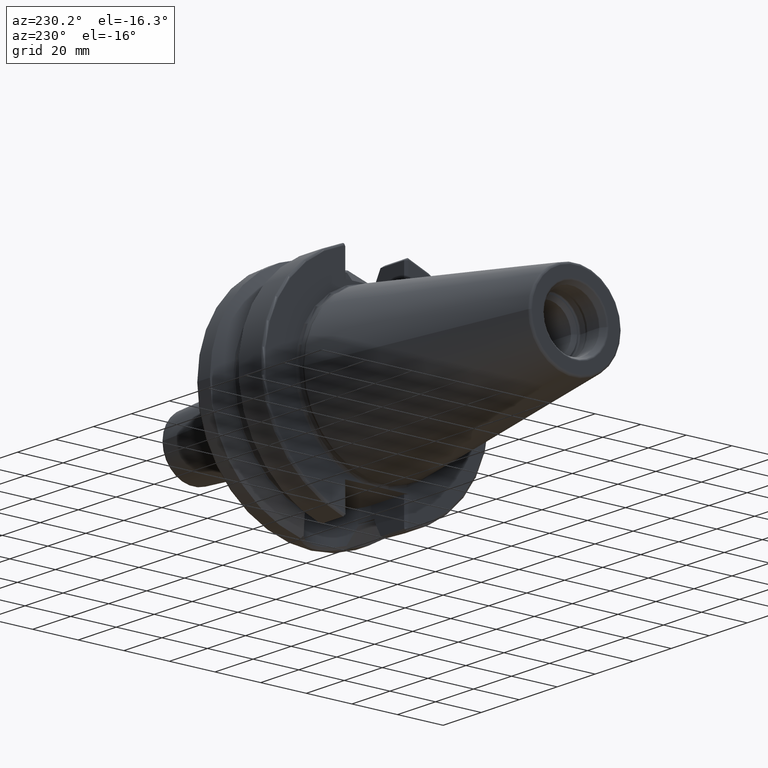
[diagram: clean part render]
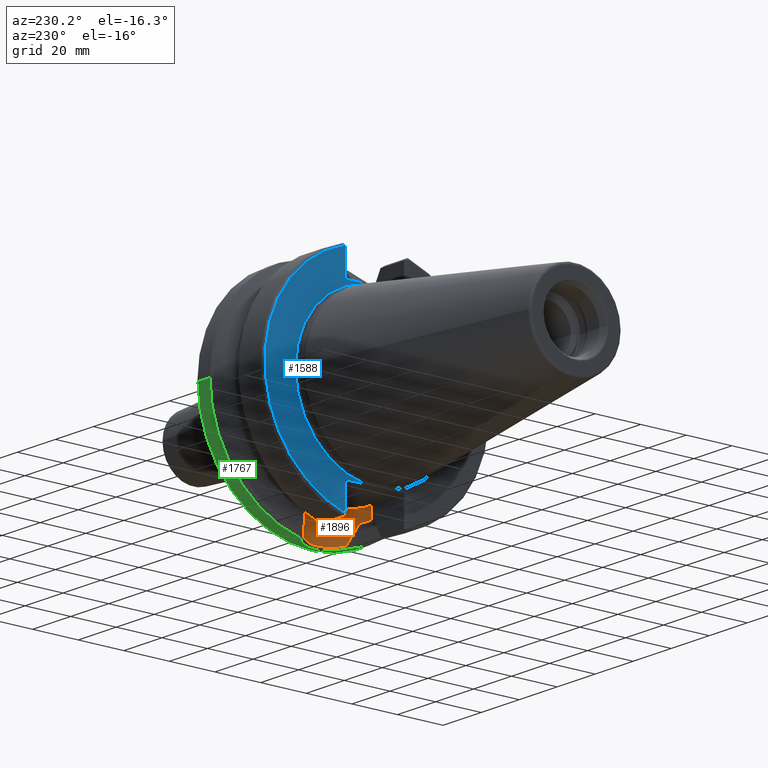
[diagram: same view with three faces highlighted in distinct colors, each labeled with its STEP entity id]
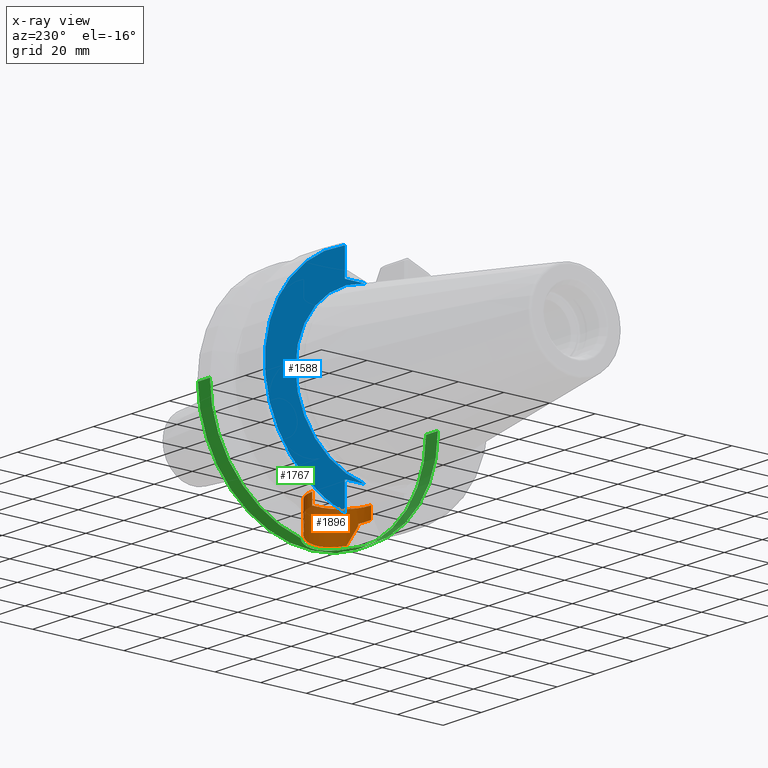
[diagram: x-ray of the same camera — body ghosted, the three highlighted faces saturated]
A machine part, auxiliary view with three faces highlighted in distinct colors.
The next image is the same camera in x-ray (body ghosted, the three faces saturated) — at least one of them is partly hidden behind the body in this view.
Their STEP definitions:

[orange] entity #1896 — the highlighted cylindrical surface (partial cylindrical patch) has radius 12.9025 mm, axis along (0, 0, 1).
#182=DIRECTION('',(0.E0,0.E0,-1.E0));
#183=VECTOR('',#182,5.162930007E0);
#184=CARTESIAN_POINT('',(2.13475E1,1.29025E1,-3.52E1));
#185=LINE('',#184,#183);
#354=CARTESIAN_POINT('',(2.13475E1,1.29025E1,-4.036293000700E1));
#355=CARTESIAN_POINT('',(2.193211835169E1,1.29025E1,-4.036293000700E1));
#356=CARTESIAN_POINT('',(2.309259987866E1,1.282394305612E1,-4.038817378856E1));
#357=CARTESIAN_POINT('',(2.482251458198E1,1.246756636177E1,-4.050035379602E1));
#358=CARTESIAN_POINT('',(2.593767013310E1,1.207328392825E1,-4.061943244291E1));
#359=CARTESIAN_POINT('',(2.64875E1,1.183447955129E1,-4.068888937720E1));
#368=CARTESIAN_POINT('',(2.64875E1,-1.183447955129E1,-4.068888937720E1));
#369=CARTESIAN_POINT('',(2.593767013313E1,-1.207328392824E1,-4.061943244291E1));
#370=CARTESIAN_POINT('',(2.482251458205E1,-1.246756636174E1,-4.050035379603E1));
#371=CARTESIAN_POINT('',(2.309259987910E1,-1.282394305606E1,-4.038817378858E1));
#372=CARTESIAN_POINT('',(2.193211835188E1,-1.29025E1,-4.036293000700E1));
#373=CARTESIAN_POINT('',(2.13475E1,-1.29025E1,-4.036293000700E1));
#387=DIRECTION('',(2.297871418294E-14,0.E0,1.E0));
#388=VECTOR('',#387,4.638266941984E-1);
#389=CARTESIAN_POINT('',(2.67375E1,-1.172273032403E1,-4.144514217760E1));
#390=LINE('',#389,#388);
#391=CARTESIAN_POINT('',(3.016210431090E1,-9.422168385896E0,-4.808834737145E1));
#392=CARTESIAN_POINT('',(2.984184465633E1,-9.721776927818E0,-4.746439031418E1));
#393=CARTESIAN_POINT('',(2.916110296190E1,-1.029742776940E1,-4.613939859477E1));
#394=CARTESIAN_POINT('',(2.801848253867E1,-1.107377940524E1,-4.392131510326E1));
#395=CARTESIAN_POINT('',(2.717774587881E1,-1.152030945269E1,-4.229484073698E1));
#396=CARTESIAN_POINT('',(2.67375E1,-1.172273032403E1,-4.144514217760E1));
#398=CARTESIAN_POINT('',(3.016210431090E1,-9.422168385896E0,-4.808834737145E1));
#399=CARTESIAN_POINT('',(3.038830254385E1,-9.210558729678E0,-4.812867332843E1));
#400=CARTESIAN_POINT('',(3.103434169493E1,-8.560889379491E0,-4.824821252851E1));
#401=CARTESIAN_POINT('',(3.197970905132E1,-7.382445453295E0,-4.844242280592E1));
#402=CARTESIAN_POINT('',(3.289145171727E1,-5.852654825445E0,-4.864857494510E1));
#403=CARTESIAN_POINT('',(3.357771384758E1,-4.232712259927E0,-4.881504266262E1));
#404=CARTESIAN_POINT('',(3.403491650909E1,-2.550947084760E0,-4.893129473496E1));
#405=CARTESIAN_POINT('',(3.426160790023E1,-8.338904639241E-1,
-4.899052850444E1));
#406=CARTESIAN_POINT('',(3.425755148343E1,8.947935434790E-1,-4.898945929220E1));
#407=CARTESIAN_POINT('',(3.402263555299E1,2.611429124511E0,-4.892811575875E1));
#408=CARTESIAN_POINT('',(3.355723766629E1,4.291494858894E0,-4.880993653671E1));
#409=CARTESIAN_POINT('',(3.286290406160E1,5.908692243282E0,-4.864185941849E1));
#410=CARTESIAN_POINT('',(3.194332576898E1,7.434643787718E0,-4.843455074383E1));
#411=CARTESIAN_POINT('',(3.100512167181E1,8.592346283708E0,-4.824257317048E1));
#412=CARTESIAN_POINT('',(3.037263944382E1,9.225225040673E0,-4.812587812569E1));
#413=CARTESIAN_POINT('',(3.016210355788E1,9.422169090361E0,-4.808834590435E1));
#415=CARTESIAN_POINT('',(2.67375E1,1.172273032403E1,-4.144514217760E1));
#416=CARTESIAN_POINT('',(2.717755273188E1,1.152039825981E1,-4.229446795287E1));
#417=CARTESIAN_POINT('',(2.801804260532E1,1.107404406164E1,-4.392046244152E1));
#418=CARTESIAN_POINT('',(2.916093120674E1,1.029757215552E1,-4.613906421021E1));
#419=CARTESIAN_POINT('',(2.984177307163E1,9.721843848552E0,-4.746425084782E1));
#420=CARTESIAN_POINT('',(3.016210355788E1,9.422169090361E0,-4.808834590435E1));
#422=DIRECTION('',(0.E0,1.148935709147E-14,1.E0));
#423=VECTOR('',#422,4.638266941984E-1);
#424=CARTESIAN_POINT('',(2.67375E1,1.172273032403E1,-4.144514217760E1));
#425=LINE('',#424,#423);
#426=CARTESIAN_POINT('',(2.64875E1,1.183447955129E1,-4.068888937720E1));
#427=CARTESIAN_POINT('',(2.651408131936E1,1.182293464297E1,-4.069224724672E1));
#428=CARTESIAN_POINT('',(2.656490253593E1,1.180065791496E1,-4.070695762482E1));
#429=CARTESIAN_POINT('',(2.663891469758E1,1.176763685688E1,-4.075541966358E1));
#430=CARTESIAN_POINT('',(2.669626231199E1,1.174163763665E1,-4.082489375053E1));
#431=CARTESIAN_POINT('',(2.672998645392E1,1.172618901674E1,-4.090260058967E1));
#432=CARTESIAN_POINT('',(2.67375E1,1.172273032403E1,-4.095473554554E1));
#433=CARTESIAN_POINT('',(2.67375E1,1.172273032403E1,-4.098131548340E1));
#435=DIRECTION('',(0.E0,0.E0,-1.E0));
#436=VECTOR('',#435,5.162930007E0);
#437=CARTESIAN_POINT('',(2.13475E1,-1.29025E1,-3.52E1));
#438=LINE('',#437,#436);
#439=CARTESIAN_POINT('',(2.67375E1,-1.172273032403E1,-4.098131548340E1));
#440=CARTESIAN_POINT('',(2.67375E1,-1.172273032403E1,-4.095473554554E1));
#441=CARTESIAN_POINT('',(2.672998645392E1,-1.172618901674E1,-4.090260058967E1));
#442=CARTESIAN_POINT('',(2.669626231199E1,-1.174163763665E1,-4.082489375053E1));
#443=CARTESIAN_POINT('',(2.663891469758E1,-1.176763685688E1,-4.075541966358E1));
#444=CARTESIAN_POINT('',(2.656490253593E1,-1.180065791496E1,-4.070695762482E1));
#445=CARTESIAN_POINT('',(2.651408131936E1,-1.182293464297E1,-4.069224724672E1));
#446=CARTESIAN_POINT('',(2.64875E1,-1.183447955129E1,-4.068888937720E1));
#753=CARTESIAN_POINT('',(2.13475E1,0.E0,-3.52E1));
#754=DIRECTION('',(0.E0,0.E0,1.E0));
#755=DIRECTION('',(0.E0,-1.E0,0.E0));
#756=AXIS2_PLACEMENT_3D('',#753,#754,#755);
#1193=CARTESIAN_POINT('',(2.67375E1,-1.172273032403E1,-4.098131548340E1));
#1195=VERTEX_POINT('',#1193);
#1196=CARTESIAN_POINT('',(2.64875E1,-1.183447955129E1,-4.068888937720E1));
#1198=VERTEX_POINT('',#1196);
#1201=CARTESIAN_POINT('',(2.64875E1,1.183447955129E1,-4.068888937720E1));
#1203=VERTEX_POINT('',#1201);
#1204=CARTESIAN_POINT('',(2.67375E1,1.172273032403E1,-4.098131548340E1));
#1206=VERTEX_POINT('',#1204);
#1209=CARTESIAN_POINT('',(2.67375E1,1.172273032403E1,-4.144514217760E1));
#1211=VERTEX_POINT('',#1209);
#1212=CARTESIAN_POINT('',(2.67375E1,-1.172273032403E1,-4.144514217760E1));
#1214=VERTEX_POINT('',#1212);
#1314=CARTESIAN_POINT('',(2.13475E1,-1.29025E1,-3.52E1));
#1315=CARTESIAN_POINT('',(2.13475E1,1.29025E1,-3.52E1));
#1316=VERTEX_POINT('',#1314);
#1317=VERTEX_POINT('',#1315);
#1330=CARTESIAN_POINT('',(2.13475E1,1.29025E1,-4.036293000700E1));
#1331=VERTEX_POINT('',#1330);
#1333=CARTESIAN_POINT('',(2.13475E1,-1.29025E1,-4.036293000700E1));
#1334=VERTEX_POINT('',#1333);
#1336=VERTEX_POINT('',#391);
#1337=VERTEX_POINT('',#420);
#1869=CARTESIAN_POINT('',(2.13475E1,0.E0,-3.52E1));
#1870=DIRECTION('',(0.E0,0.E0,1.E0));
#1871=DIRECTION('',(1.E0,0.E0,0.E0));
#1872=AXIS2_PLACEMENT_3D('',#1869,#1870,#1871);
#1873=CYLINDRICAL_SURFACE('',#1872,1.29025E1);
#1875=ORIENTED_EDGE('',*,*,#1874,.F.);
#1877=ORIENTED_EDGE('',*,*,#1876,.F.);
#1879=ORIENTED_EDGE('',*,*,#1878,.T.);
#1881=ORIENTED_EDGE('',*,*,#1880,.F.);
#1883=ORIENTED_EDGE('',*,*,#1882,.T.);
#1885=ORIENTED_EDGE('',*,*,#1884,.F.);
#1886=ORIENTED_EDGE('',*,*,#1840,.F.);
#1887=ORIENTED_EDGE('',*,*,#1641,.F.);
#1889=ORIENTED_EDGE('',*,*,#1888,.F.);
#1890=ORIENTED_EDGE('',*,*,#1792,.T.);
#1891=ORIENTED_EDGE('',*,*,#1856,.F.);
#1893=ORIENTED_EDGE('',*,*,#1892,.F.);
#1894=EDGE_LOOP('',(#1875,#1877,#1879,#1881,#1883,#1885,#1886,#1887,#1889,#1890,
#1891,#1893));
#1895=FACE_OUTER_BOUND('',#1894,.F.);
#1896=ADVANCED_FACE('',(#1895),#1873,.F.);
#360=B_SPLINE_CURVE_WITH_KNOTS('',3,(#354,#355,#356,#357,#358,#359),
.UNSPECIFIED.,.F.,.F.,(4,1,1,4),(0.E0,3.333333333333E-1,6.666666666667E-1,1.E0),
.UNSPECIFIED.);
#374=B_SPLINE_CURVE_WITH_KNOTS('',3,(#368,#369,#370,#371,#372,#373),
.UNSPECIFIED.,.F.,.F.,(4,1,1,4),(0.E0,3.333333333333E-1,6.666666666667E-1,1.E0),
.UNSPECIFIED.);
#397=B_SPLINE_CURVE_WITH_KNOTS('',3,(#391,#392,#393,#394,#395,#396),
.UNSPECIFIED.,.F.,.F.,(4,1,1,4),(0.E0,3.333333333333E-1,6.666666666667E-1,1.E0),
.UNSPECIFIED.);
#414=B_SPLINE_CURVE_WITH_KNOTS('',3,(#398,#399,#400,#401,#402,#403,#404,#405,
#406,#407,#408,#409,#410,#411,#412,#413),.UNSPECIFIED.,.F.,.F.,(4,1,1,1,1,1,1,1,
1,1,1,1,1,4),(0.E0,4.259851317235E-2,1.260313520961E-1,2.094641910198E-1,
2.928970299435E-1,3.763298688672E-1,4.597627077909E-1,5.431955467147E-1,
6.266283856384E-1,7.100612245621E-1,7.934940634858E-1,8.769269024095E-1,
9.603597413332E-1,1.E0),.UNSPECIFIED.);
#421=B_SPLINE_CURVE_WITH_KNOTS('',3,(#415,#416,#417,#418,#419,#420),
.UNSPECIFIED.,.F.,.F.,(4,1,1,4),(0.E0,3.333333333333E-1,6.666666666667E-1,1.E0),
.UNSPECIFIED.);
#434=B_SPLINE_CURVE_WITH_KNOTS('',3,(#426,#427,#428,#429,#430,#431,#432,#433),
.UNSPECIFIED.,.F.,.F.,(4,1,1,1,1,4),(0.E0,2.E-1,4.E-1,6.E-1,8.E-1,1.E0),
.UNSPECIFIED.);
#447=B_SPLINE_CURVE_WITH_KNOTS('',3,(#439,#440,#441,#442,#443,#444,#445,#446),
.UNSPECIFIED.,.F.,.F.,(4,1,1,1,1,4),(0.E0,2.E-1,4.E-1,6.E-1,8.E-1,1.E0),
.UNSPECIFIED.);
#757=CIRCLE('',#756,1.29025E1);
#1641=EDGE_CURVE('',#1317,#1331,#185,.T.);
#1792=EDGE_CURVE('',#1316,#1334,#438,.T.);
#1840=EDGE_CURVE('',#1331,#1203,#360,.T.);
#1856=EDGE_CURVE('',#1198,#1334,#374,.T.);
#1874=EDGE_CURVE('',#1214,#1195,#390,.T.);
#1876=EDGE_CURVE('',#1336,#1214,#397,.T.);
#1878=EDGE_CURVE('',#1336,#1337,#414,.T.);
#1880=EDGE_CURVE('',#1211,#1337,#421,.T.);
#1882=EDGE_CURVE('',#1211,#1206,#425,.T.);
#1884=EDGE_CURVE('',#1203,#1206,#434,.T.);
#1888=EDGE_CURVE('',#1316,#1317,#757,.T.);
#1892=EDGE_CURVE('',#1195,#1198,#447,.T.);

[blue] entity #1588 — the highlighted planar face has unit normal (1, 0, 0).
#96=CARTESIAN_POINT('',(3.E0,0.E0,0.E0));
#97=DIRECTION('',(-1.E0,0.E0,0.E0));
#98=DIRECTION('',(0.E0,1.E0,0.E0));
#99=AXIS2_PLACEMENT_3D('',#96,#97,#98);
#127=DIRECTION('',(5.798787724366E-7,5.799135248072E-7,9.999999999997E-1));
#128=VECTOR('',#127,1.177335004622E1);
#129=CARTESIAN_POINT('',(2.999993172884E0,1.390249317248E1,-4.697335004621E1));
#130=LINE('',#129,#128);
#131=DIRECTION('',(-1.226013541637E-6,-1.226161370240E-6,9.999999999985E-1));
#132=VECTOR('',#131,1.177335390080E1);
#133=CARTESIAN_POINT('',(3.E0,1.39025E1,3.52E1));
#134=LINE('',#133,#132);
#588=CARTESIAN_POINT('',(3.E0,0.E0,0.E0));
#589=DIRECTION('',(-1.E0,0.E0,0.E0));
#590=DIRECTION('',(0.E0,2.837969049058E-1,9.588844126201E-1));
#591=AXIS2_PLACEMENT_3D('',#588,#589,#590);
#683=DIRECTION('',(0.E0,1.E0,0.E0));
#684=VECTOR('',#683,8.750740591798E0);
#685=CARTESIAN_POINT('',(3.E0,5.151759408202E0,3.52E1));
#686=LINE('',#685,#684);
#704=CARTESIAN_POINT('',(3.E0,0.E0,0.E0));
#705=DIRECTION('',(1.E0,0.E0,0.E0));
#706=DIRECTION('',(0.E0,1.E0,0.E0));
#707=AXIS2_PLACEMENT_3D('',#704,#705,#706);
#741=DIRECTION('',(0.E0,-1.E0,0.E0));
#742=VECTOR('',#741,8.750740591798E0);
#743=CARTESIAN_POINT('',(3.E0,1.39025E1,-3.52E1));
#744=LINE('',#743,#742);
#1240=CARTESIAN_POINT('',(3.E0,3.5575E1,0.E0));
#1242=VERTEX_POINT('',#1240);
#1310=CARTESIAN_POINT('',(3.E0,5.151759408202E0,3.52E1));
#1311=VERTEX_POINT('',#1310);
#1318=CARTESIAN_POINT('',(3.E0,5.151759408202E0,-3.52E1));
#1319=VERTEX_POINT('',#1318);
#1356=CARTESIAN_POINT('',(3.E0,1.390251954398E1,4.697334463905E1));
#1358=VERTEX_POINT('',#1356);
#1360=CARTESIAN_POINT('',(3.E0,1.39025E1,3.52E1));
#1361=VERTEX_POINT('',#1360);
#1370=CARTESIAN_POINT('',(2.999993172884E0,1.390249317248E1,-4.697335004621E1));
#1371=CARTESIAN_POINT('',(3.E0,1.39025E1,-3.52E1));
#1372=VERTEX_POINT('',#1370);
#1373=VERTEX_POINT('',#1371);
#1568=CARTESIAN_POINT('',(3.E0,0.E0,0.E0));
#1569=DIRECTION('',(1.E0,0.E0,0.E0));
#1570=DIRECTION('',(0.E0,-1.E0,0.E0));
#1571=AXIS2_PLACEMENT_3D('',#1568,#1569,#1570);
#1572=PLANE('',#1571);
#1574=ORIENTED_EDGE('',*,*,#1573,.F.);
#1576=ORIENTED_EDGE('',*,*,#1575,.F.);
#1578=ORIENTED_EDGE('',*,*,#1577,.F.);
#1580=ORIENTED_EDGE('',*,*,#1579,.F.);
#1582=ORIENTED_EDGE('',*,*,#1581,.F.);
#1583=ORIENTED_EDGE('',*,*,#1554,.T.);
#1585=ORIENTED_EDGE('',*,*,#1584,.F.);
#1586=EDGE_LOOP('',(#1574,#1576,#1578,#1580,#1582,#1583,#1585));
#1587=FACE_OUTER_BOUND('',#1586,.F.);
#1588=ADVANCED_FACE('',(#1587),#1572,.F.);
#100=CIRCLE('',#99,3.5575E1);
#592=CIRCLE('',#591,4.89875E1);
#708=CIRCLE('',#707,3.5575E1);
#1554=EDGE_CURVE('',#1242,#1319,#100,.T.);
#1573=EDGE_CURVE('',#1372,#1373,#130,.T.);
#1575=EDGE_CURVE('',#1358,#1372,#592,.T.);
#1577=EDGE_CURVE('',#1361,#1358,#134,.T.);
#1579=EDGE_CURVE('',#1311,#1361,#686,.T.);
#1581=EDGE_CURVE('',#1242,#1311,#708,.T.);
#1584=EDGE_CURVE('',#1373,#1319,#744,.T.);

[green] entity #1767 — the highlighted cylindrical surface (partial cylindrical patch) has radius 49.9875 mm, axis along (1, 0, 0).
#245=CARTESIAN_POINT('',(3.073066823617E1,0.E0,0.E0));
#246=DIRECTION('',(1.E0,0.E0,0.E0));
#247=DIRECTION('',(0.E0,-1.E0,0.E0));
#248=AXIS2_PLACEMENT_3D('',#245,#246,#247);
#250=DIRECTION('',(-1.E0,0.E0,0.E0));
#251=VECTOR('',#250,6.269331763825E0);
#252=CARTESIAN_POINT('',(3.7E1,-4.99875E1,0.E0));
#253=LINE('',#252,#251);
#254=CARTESIAN_POINT('',(3.7E1,0.E0,0.E0));
#255=DIRECTION('',(-1.E0,0.E0,0.E0));
#256=DIRECTION('',(0.E0,1.E0,0.E0));
#257=AXIS2_PLACEMENT_3D('',#254,#255,#256);
#259=DIRECTION('',(-1.E0,0.E0,0.E0));
#260=VECTOR('',#259,6.269331763825E0);
#261=CARTESIAN_POINT('',(3.7E1,4.99875E1,0.E0));
#262=LINE('',#261,#260);
#263=CARTESIAN_POINT('',(3.073066823617E1,0.E0,0.E0));
#264=DIRECTION('',(1.E0,0.E0,0.E0));
#265=DIRECTION('',(0.E0,2.049238320147E-1,-9.787779232657E-1));
#266=AXIS2_PLACEMENT_3D('',#263,#264,#265);
#268=CARTESIAN_POINT('',(3.073066823617E1,-1.024362896192E1,-4.892666166765E1));
#269=CARTESIAN_POINT('',(3.098270283187E1,-1.001417718341E1,-4.897470211605E1));
#270=CARTESIAN_POINT('',(3.169166615887E1,-9.319400396050E0,-4.911525921509E1));
#271=CARTESIAN_POINT('',(3.273084485343E1,-8.053271971541E0,-4.934320333096E1));
#272=CARTESIAN_POINT('',(3.373604925811E1,-6.403749543948E0,-4.958561427133E1));
#273=CARTESIAN_POINT('',(3.449815557842E1,-4.642881969044E0,-4.978242400372E1));
#274=CARTESIAN_POINT('',(3.500885094483E1,-2.803177447712E0,-4.992052659569E1));
#275=CARTESIAN_POINT('',(3.526301129761E1,-9.171953499314E-1,
-4.999110779315E1));
#276=CARTESIAN_POINT('',(3.525845754566E1,9.841660632756E-1,-4.998983236145E1));
#277=CARTESIAN_POINT('',(3.499510022915E1,2.869497687983E0,-4.991674285500E1));
#278=CARTESIAN_POINT('',(3.447534098345E1,4.706993512578E0,-4.977637056974E1));
#279=CARTESIAN_POINT('',(3.370445493838E1,6.464420400783E0,-4.957769692922E1));
#280=CARTESIAN_POINT('',(3.269088982289E1,8.109294467286E0,-4.933397361508E1));
#281=CARTESIAN_POINT('',(3.165982070584E1,9.352836362394E0,-4.910869672587E1));
#282=CARTESIAN_POINT('',(3.096569258413E1,1.002967890474E1,-4.897145777206E1));
#283=CARTESIAN_POINT('',(3.073066823617E1,1.024363005283E1,-4.892666143925E1));
#1224=CARTESIAN_POINT('',(3.073066823617E1,4.99875E1,0.E0));
#1226=VERTEX_POINT('',#1224);
#1228=CARTESIAN_POINT('',(3.073066823617E1,-4.99875E1,-1.224340637448E-14));
#1229=CARTESIAN_POINT('',(3.073066823617E1,-1.024362896192E1,
-4.892666166765E1));
#1230=VERTEX_POINT('',#1228);
#1231=VERTEX_POINT('',#1229);
#1232=CARTESIAN_POINT('',(3.7E1,4.99875E1,0.E0));
#1233=VERTEX_POINT('',#1232);
#1234=CARTESIAN_POINT('',(3.7E1,-4.99875E1,0.E0));
#1235=VERTEX_POINT('',#1234);
#1238=CARTESIAN_POINT('',(3.073066823617E1,1.024363005283E1,-4.892666143925E1));
#1239=VERTEX_POINT('',#1238);
#1748=CARTESIAN_POINT('',(-1.0879E2,0.E0,0.E0));
#1749=DIRECTION('',(1.E0,0.E0,0.E0));
#1750=DIRECTION('',(0.E0,-1.E0,0.E0));
#1751=AXIS2_PLACEMENT_3D('',#1748,#1749,#1750);
#1752=CYLINDRICAL_SURFACE('',#1751,4.99875E1);
#1754=ORIENTED_EDGE('',*,*,#1753,.F.);
#1756=ORIENTED_EDGE('',*,*,#1755,.F.);
#1758=ORIENTED_EDGE('',*,*,#1757,.F.);
#1760=ORIENTED_EDGE('',*,*,#1759,.T.);
#1762=ORIENTED_EDGE('',*,*,#1761,.F.);
#1764=ORIENTED_EDGE('',*,*,#1763,.F.);
#1765=EDGE_LOOP('',(#1754,#1756,#1758,#1760,#1762,#1764));
#1766=FACE_OUTER_BOUND('',#1765,.F.);
#1767=ADVANCED_FACE('',(#1766),#1752,.T.);
#249=CIRCLE('',#248,4.99875E1);
#258=CIRCLE('',#257,4.99875E1);
#267=CIRCLE('',#266,4.99875E1);
#284=B_SPLINE_CURVE_WITH_KNOTS('',3,(#268,#269,#270,#271,#272,#273,#274,#275,
#276,#277,#278,#279,#280,#281,#282,#283),.UNSPECIFIED.,.F.,.F.,(4,1,1,1,1,1,1,1,
1,1,1,1,1,4),(0.E0,4.360500285610E-2,1.268542736082E-1,2.101035443602E-1,
2.933528151123E-1,3.766020858644E-1,4.598513566164E-1,5.431006273685E-1,
6.263498981206E-1,7.095991688726E-1,7.928484396247E-1,8.760977103768E-1,
9.593469811288E-1,1.E0),.UNSPECIFIED.);
#1753=EDGE_CURVE('',#1230,#1231,#249,.T.);
#1755=EDGE_CURVE('',#1235,#1230,#253,.T.);
#1757=EDGE_CURVE('',#1233,#1235,#258,.T.);
#1759=EDGE_CURVE('',#1233,#1226,#262,.T.);
#1761=EDGE_CURVE('',#1239,#1226,#267,.T.);
#1763=EDGE_CURVE('',#1231,#1239,#284,.T.);